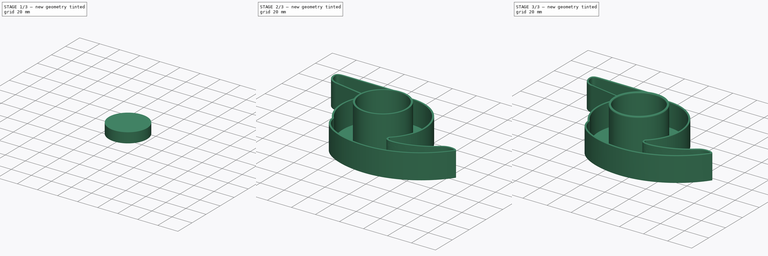
[diagram: build sequence overview — one tinted view per stage of 3, left to right]
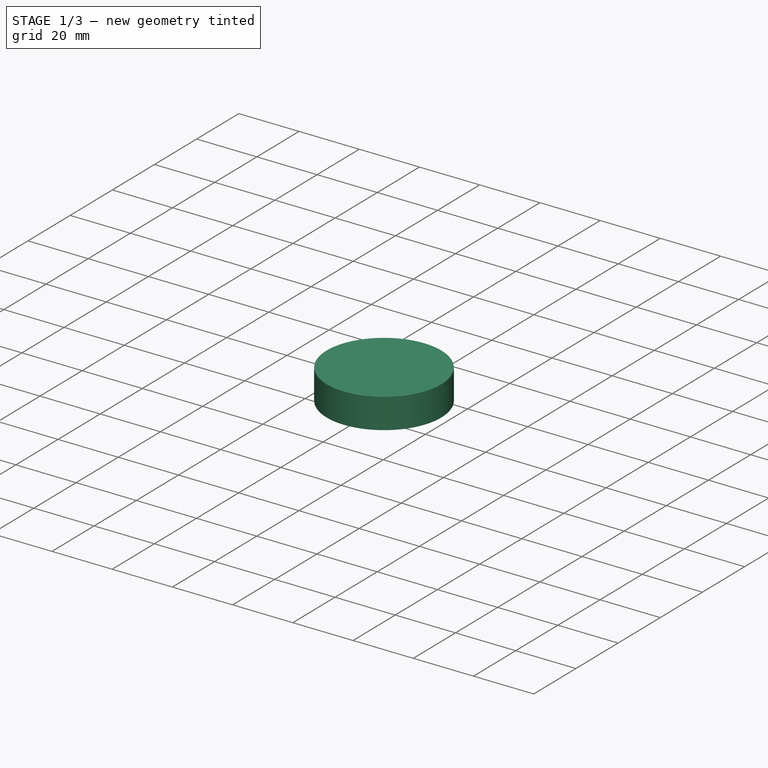
[diagram: stage 1 of 3 — iso view after this stage's code; geometry added in this stage tinted green]
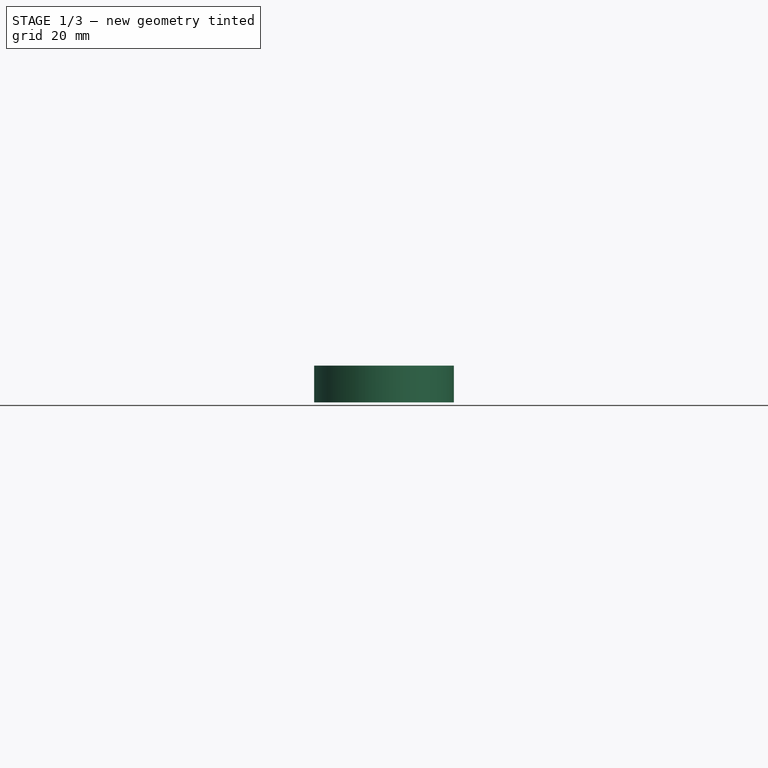
[diagram: stage 1 of 3 — front view after this stage's code; geometry added in this stage tinted green]
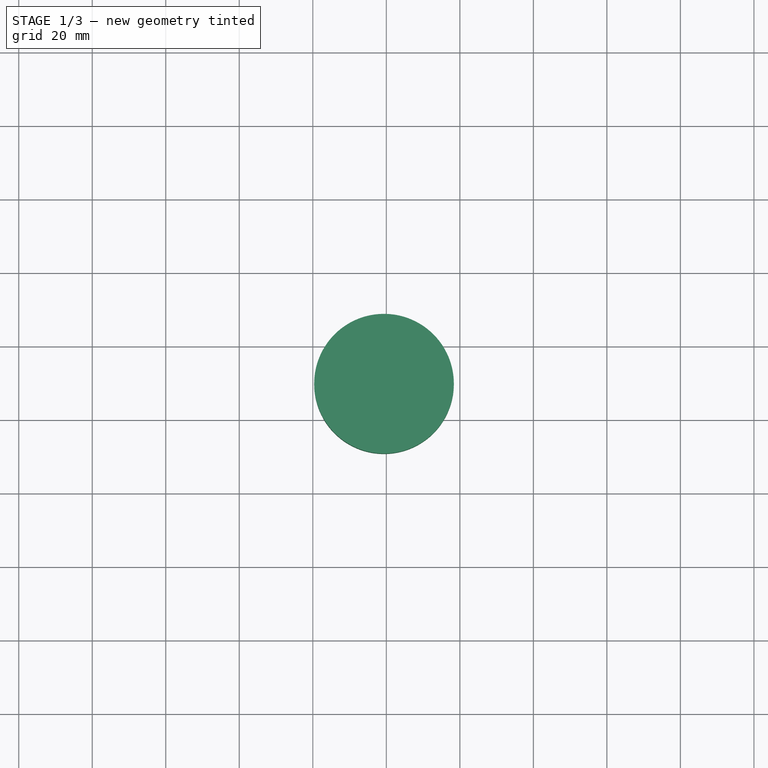
[diagram: stage 1 of 3 — top view after this stage's code; geometry added in this stage tinted green]
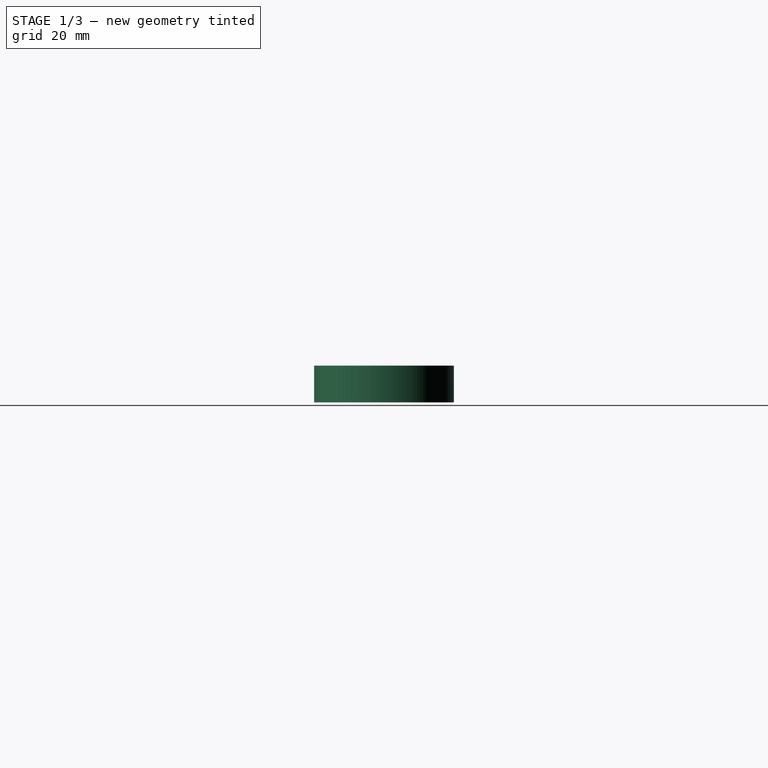
[diagram: stage 1 of 3 — right view after this stage's code; geometry added in this stage tinted green]
FCSTD DOCUMENT  (FreeCAD 0.19R22492 (Git))
Label: mixer blade cap
License: All rights reserved
LicenseURL: http://en.wikipedia.org/wiki/All_rights_reserved
objects: Sketcher::SketchObject×3, Image::ImagePlane×2, Part::Extrusion×2, Part::Fillet×2, PartDesign::Pad×1, PartDesign::Body×1, Part::Thickness×1, Part::MultiFuse×1, Part::Cut×1
note: 13 computed .brp shape members not serialized (recipe doc carries the construction recipe); baked Part::Feature solids carry a one-line shape summary decoded from their .brp

FEATURE [Image::ImagePlane] ImagePlane
  XSize = 187.915
  YSize = 140.985
FEATURE [Image::ImagePlane] ImagePlane001
  XSize = 111.841
  YSize = 161.77
FEATURE [Sketcher::SketchObject] Sketch
  MapMode = 5
  Support = -> [XY_Plane]
  sketch-geometry (52):
    g0: LineSegment StartX=-15.4348 StartY=47.4766 StartZ=0 EndX=-59.5325 EndY=47.4766 EndZ=0
    g1: LineSegment StartX=-57.313 StartY=36.2664 StartZ=0 EndX=-32.3412 EndY=31.7626 EndZ=0
    g2-g6: Circle [constr] x5 (B-spline internal-alignment scaffolding for g7; pole/knot coordinates omitted)
    g7: BSplineCurve PolesCount=5 KnotsCount=3 Degree=3 IsPeriodic=0
    g8: GeomPoint [constr] X=-59.5325 Y=47.4766 Z=0
    g9: GeomPoint [constr] X=-64.9548 Y=44.5479 Z=0
    g10: GeomPoint [constr] X=-57.313 Y=36.2664 Z=0
    g11: Circle [constr] CenterX=-15.4348 CenterY=47.4766 CenterZ=0 NormalX=0 NormalY=0 NormalZ=1 AngleXU=0 Radius=0.6
    g12: Circle [constr] CenterX=-9.20076 CenterY=46.7594 CenterZ=0 NormalX=0 NormalY=0 NormalZ=1 AngleXU=0 Radius=0.6
    g13: Circle [constr] CenterX=-1.15017 CenterY=43.3272 CenterZ=0 NormalX=0 NormalY=0 NormalZ=1 AngleXU=0 Radius=0.6
    g14: BSplineCurve PolesCount=3 KnotsCount=2 Degree=2 IsPeriodic=0
    g15: GeomPoint [constr] X=-15.4348 Y=47.4766 Z=0
    g16: GeomPoint [constr] X=-1.15017 Y=43.3272 Z=0
    g17: Circle [constr] CenterX=-32.3412 CenterY=31.7626 CenterZ=0 NormalX=0 NormalY=0 NormalZ=1 AngleXU=0 Radius=0.6
    g18: Circle [constr] CenterX=-27.569 CenterY=31.1076 CenterZ=0 NormalX=0 NormalY=0 NormalZ=1 AngleXU=0 Radius=0.6
    g19: Circle [constr] CenterX=-27.7479 CenterY=29.5024 CenterZ=0 NormalX=0 NormalY=0 NormalZ=1 AngleXU=0 Radius=0.6
    g20: BSplineCurve PolesCount=3 KnotsCount=2 Degree=2 IsPeriodic=0
    g21: GeomPoint [constr] X=-32.3412 Y=31.7626 Z=0
    g22: GeomPoint [constr] X=-27.7479 Y=29.5024 Z=0
    g23-g28: Circle [constr] x6 (B-spline internal-alignment scaffolding for g29; pole/knot coordinates omitted)
    g29: BSplineCurve PolesCount=9 KnotsCount=4 Degree=4 IsPeriodic=0
    g30-g33: GeomPoint [constr] x4 (B-spline internal-alignment scaffolding for g29; pole/knot coordinates omitted)
    g34: Circle [constr] CenterX=67.3602 CenterY=-5.4732 CenterZ=0 NormalX=0 NormalY=0 NormalZ=1 AngleXU=0 Radius=0.9
    g35: Circle [constr] CenterX=69.7004 CenterY=-6.0813 CenterZ=0 NormalX=0 NormalY=0 NormalZ=1 AngleXU=0 Radius=0.9
    g36: Circle [constr] CenterX=70.2968 CenterY=-7.04854 CenterZ=0 NormalX=0 NormalY=0 NormalZ=1 AngleXU=0 Radius=0.9
    g37-g41: Circle [constr] x5 (B-spline internal-alignment scaffolding for g42; pole/knot coordinates omitted)
    g42: BSplineCurve PolesCount=7 KnotsCount=3 Degree=4 IsPeriodic=0
    g43: GeomPoint [constr] X=70.2968 Y=-7.04854 Z=0
    g44: GeomPoint [constr] X=22.6054 Y=-34.8987 Z=0
    g45: GeomPoint [constr] X=-26.1539 Y=-11.8681 Z=0
    g46: Circle [constr] CenterX=-25.2648 CenterY=-24.466 CenterZ=0 NormalX=0 NormalY=0 NormalZ=1 AngleXU=0 Radius=4
    g47: Circle [constr] CenterX=-26.1539 CenterY=-11.8681 CenterZ=0 NormalX=0 NormalY=0 NormalZ=1 AngleXU=0 Radius=4
    g48: GeomPoint X=-0.63156 Y=9.83124 Z=0
    g49: ArcOfCircle CenterX=-0.63156 CenterY=9.83124 CenterZ=0 NormalX=0 NormalY=0 NormalZ=1 AngleXU=0 Radius=33.5 StartAngle=5.4439 EndAngle=7.86946
    g50: ArcOfCircle CenterX=-0.63156 CenterY=9.83124 CenterZ=0 NormalX=0 NormalY=0 NormalZ=1 AngleXU=0 Radius=33.5 StartAngle=2.514 EndAngle=3.84621
    g51: Circle [constr] CenterX=-0.63156 CenterY=9.83124 CenterZ=0 NormalX=0 NormalY=0 NormalZ=1 AngleXU=0 Radius=20.5
  constraints (56):
    c: Horizontal(g0)
    c: Coincident(g7,g0)
    c: Radius(g2) = 0.7
    c: Equal(g2, g3-g6) x4
    c: Coincident(g7,g1)
    c: InternalAlignment(g2-g6 -> g7) x5
    c: InternalAlignment(g8,g7)
    c: InternalAlignment(g9,g7)
    c: InternalAlignment(g10,g7)
    c: Coincident(g14,g0)
    c: Radius(g11) = 0.6
    c: Equal(g11,g12)
    c: Equal(g11,g13)
    c: InternalAlignment(g11,g14)
    c: InternalAlignment(g12,g14)
    c: InternalAlignment(g13,g14)
    c: InternalAlignment(g15,g14)
    c: InternalAlignment(g16,g14)
    c: Coincident(g20,g1)
    c: Radius(g17) = 0.6
    c: Equal(g17,g18)
    c: Equal(g17,g19)
    c: InternalAlignment(g17,g20)
    c: InternalAlignment(g18,g20)
    c: InternalAlignment(g19,g20)
    c: InternalAlignment(g21,g20)
    c: InternalAlignment(g22,g20)
    c: Radius(g23) = 0.9
    c: Equal(g23, g24-g28) x5
    c: InternalAlignment(g23-g28 -> g29) x6
    c: InternalAlignment(g30-g34 -> g29) x5
    c: Equal(g34,g23)
    c: InternalAlignment(g35,g29)
    c: Equal(g35,g23)
    c: InternalAlignment(g36,g29)
    c: Equal(g36,g23)
    c: Coincident(g42,g29)
    c: Radius(g37) = 4
    c: Equal(g37, g38-g41) x4
    c: InternalAlignment(g37-g41 -> g42) x5
    c: InternalAlignment(g43-g46 -> g42) x4
    c: Equal(g46,g37)
    c: InternalAlignment(g47,g42)
    c: Equal(g47,g37)
    c: Coincident(g49,g48)
    c: Coincident(g49,g14)
    c: Coincident(g49,g29)
    c: Coincident(g50,g48)
    c: Coincident(g50,g20)
    c: Coincident(g42,g50)
    c: Coincident(g51,g48)
    c: Diameter(g51) = 41
    c: DistanceX(g48) = -0.63156
    c: DistanceY(g48) = 9.83124
    c: Radius(g49) = 33.5
    c: Radius(g50) = 33.5
FEATURE [PartDesign::Pad] Pad
  Direction = (1,1,1)
  Length = 19
  Length2 = 100
  Profile = -> Sketch
  Refine = true
  Type = 0
FEATURE [PartDesign::Body] Body
  Group = -> [Sketch,Pad]
  Origin = -> Origin
  Tip = -> Pad
FEATURE [Part::Thickness] Thickness
  Faces = -> Pad [Face11]
  Intersection = true
  Join = 2
  Mode = 0
  SelfIntersection = false
  Value = 1.4
FEATURE [Sketcher::SketchObject] Sketch002
  ExternalGeometry = -> [Sketch001]
  MapMode = 2
  sketch-geometry (1):
    g0: Circle CenterX=-0.63156 CenterY=9.83124 CenterZ=0 NormalX=0 NormalY=0 NormalZ=1 AngleXU=0 Radius=19
  constraints (2):
    c: Coincident(g0,g-3)
    c: Diameter(g0) = 38
FEATURE [Part::Extrusion] Extrude001
  Base = -> Sketch002
  Dir = (0,0,1)
  DirMode = 2
  FaceMakerClass = Part::FaceMakerBullseye
  LengthFwd = 10
  LengthRev = 0
  Solid = true
  Symmetric = true
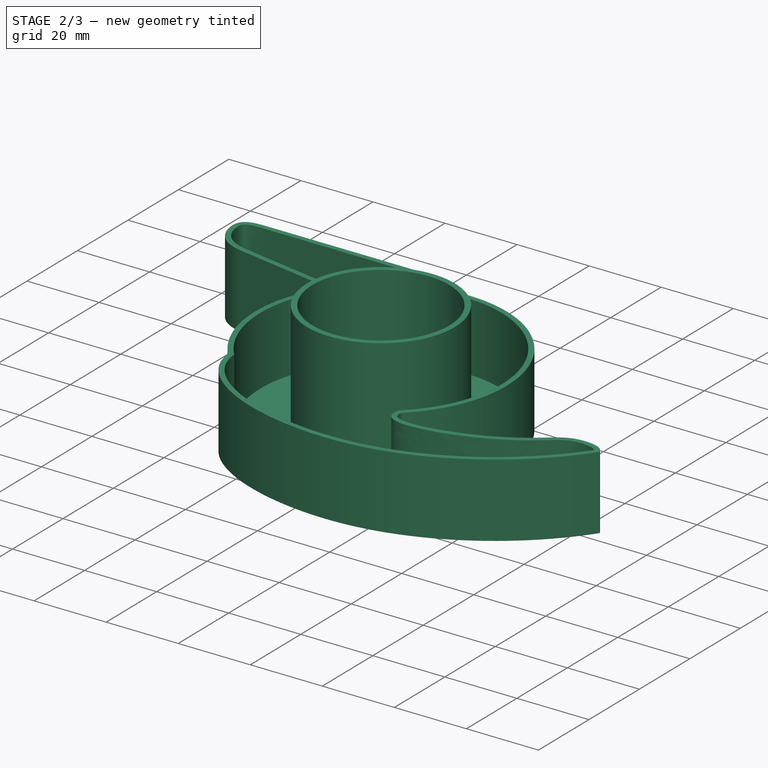
[diagram: stage 2 of 3 — iso view after this stage's code; geometry added in this stage tinted green]
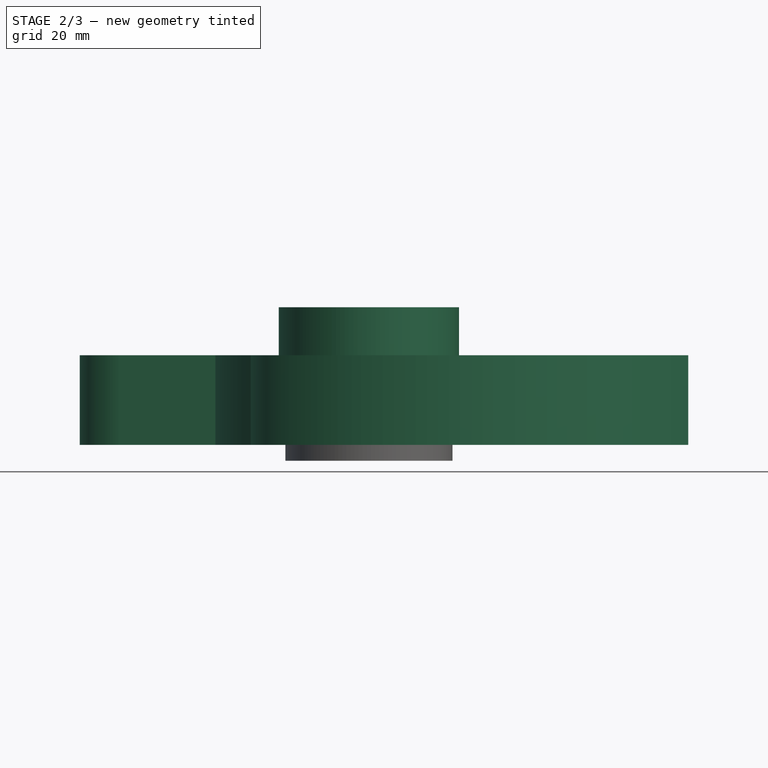
[diagram: stage 2 of 3 — front view after this stage's code; geometry added in this stage tinted green]
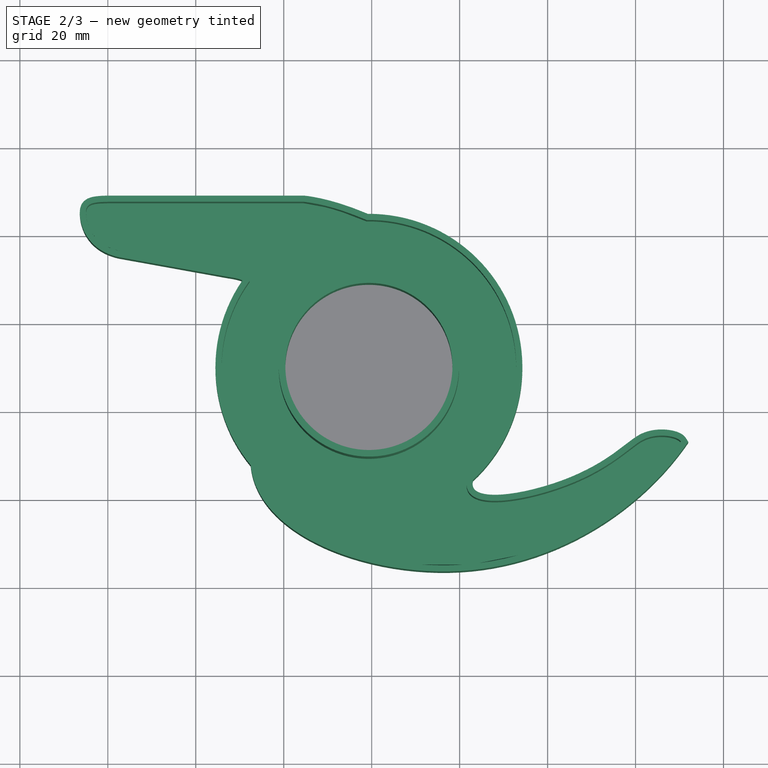
[diagram: stage 2 of 3 — top view after this stage's code; geometry added in this stage tinted green]
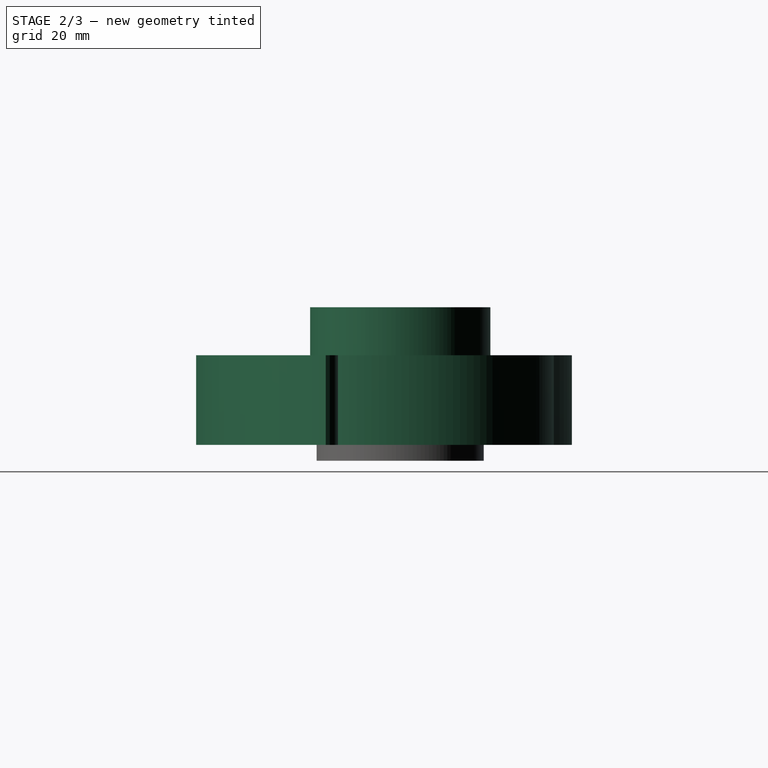
[diagram: stage 2 of 3 — right view after this stage's code; geometry added in this stage tinted green]
FEATURE [Sketcher::SketchObject] Sketch001
  MapMode = 5
  Support = -> [Thickness]
  expr: Constraints[1] = Sketch.Constraints[81]
  sketch-geometry (3):
    g0: GeomPoint X=-0.63156 Y=9.83124 Z=0
    g1: Circle CenterX=-0.63156 CenterY=9.83124 CenterZ=0 NormalX=0 NormalY=0 NormalZ=1 AngleXU=0 Radius=20.5
    g2: Circle CenterX=-0.63156 CenterY=9.83124 CenterZ=0 NormalX=0 NormalY=0 NormalZ=1 AngleXU=0 Radius=19
  constraints (6):
    c: Coincident(g1,g0)
    c: Diameter(g1) = 41
    c: DistanceX(g0) = -0.63156
    c: DistanceY(g0) = 9.83124
    c: Coincident(g2,g0)
    c: Diameter(g2) = 38
FEATURE [Part::Extrusion] Extrude
  Base = -> Sketch001
  Dir = (0,0,1)
  DirMode = 2
  FaceMakerClass = Part::FaceMakerBullseye
  LengthFwd = 30
  LengthRev = 0
  Placement = pos=(0,0,-0.1) rot=(0,0,1;0rad)
  Solid = true
  Symmetric = false
FEATURE [Part::MultiFuse] Fusion
  Refine = true
  Shapes = -> [Extrude,Thickness]
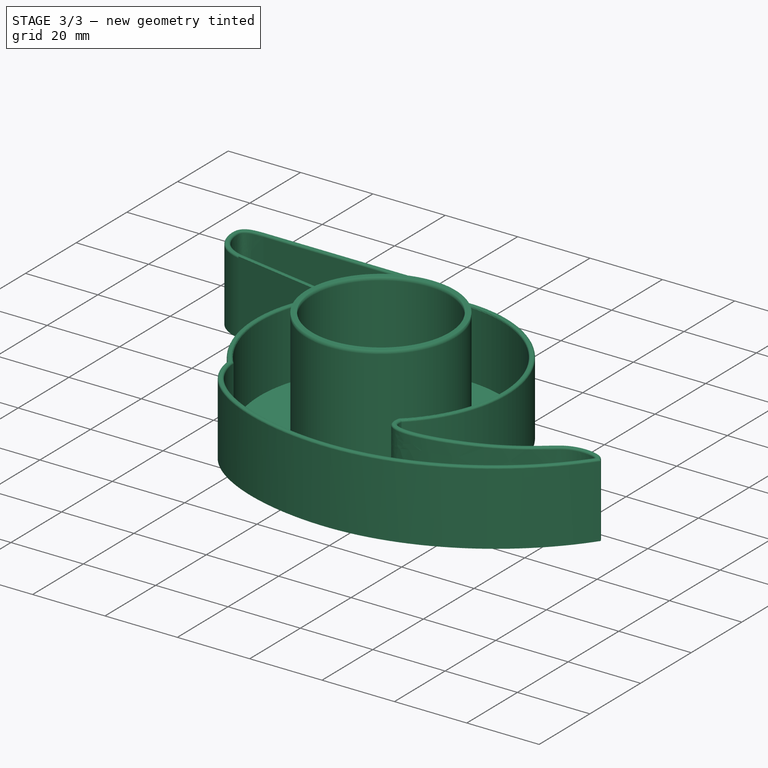
[diagram: stage 3 of 3 — iso view after this stage's code; geometry added in this stage tinted green]
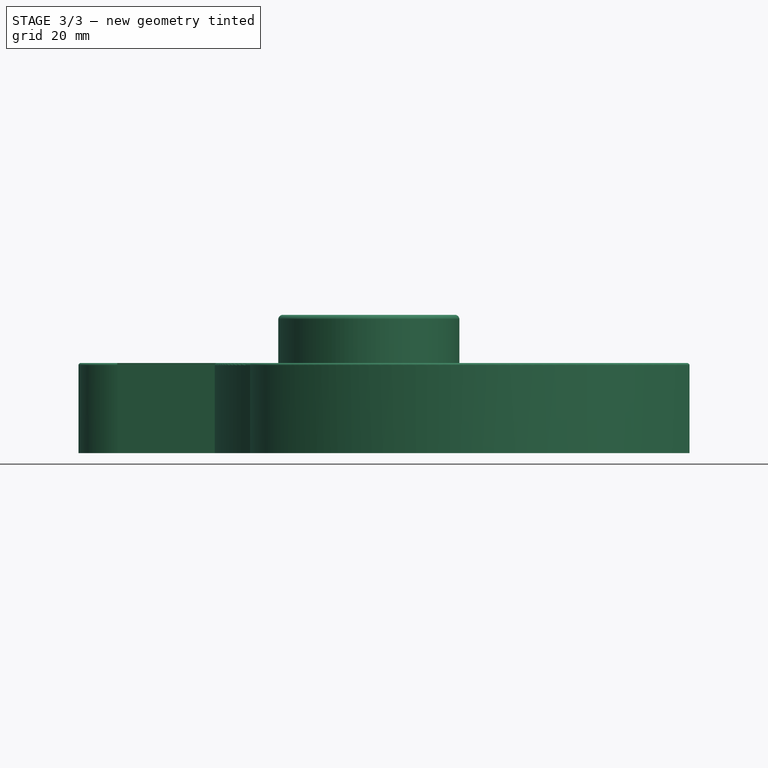
[diagram: stage 3 of 3 — front view after this stage's code; geometry added in this stage tinted green]
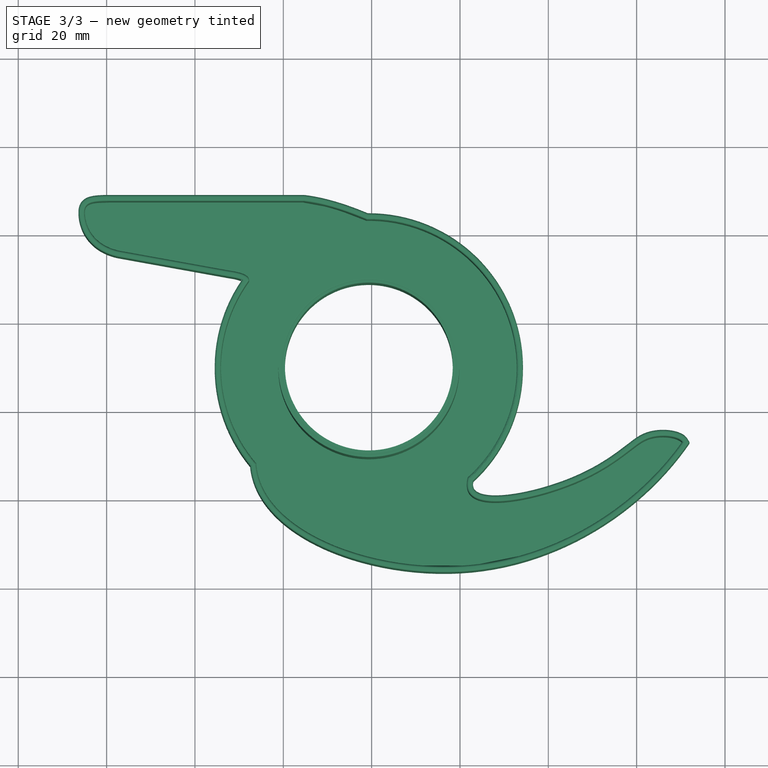
[diagram: stage 3 of 3 — top view after this stage's code; geometry added in this stage tinted green]
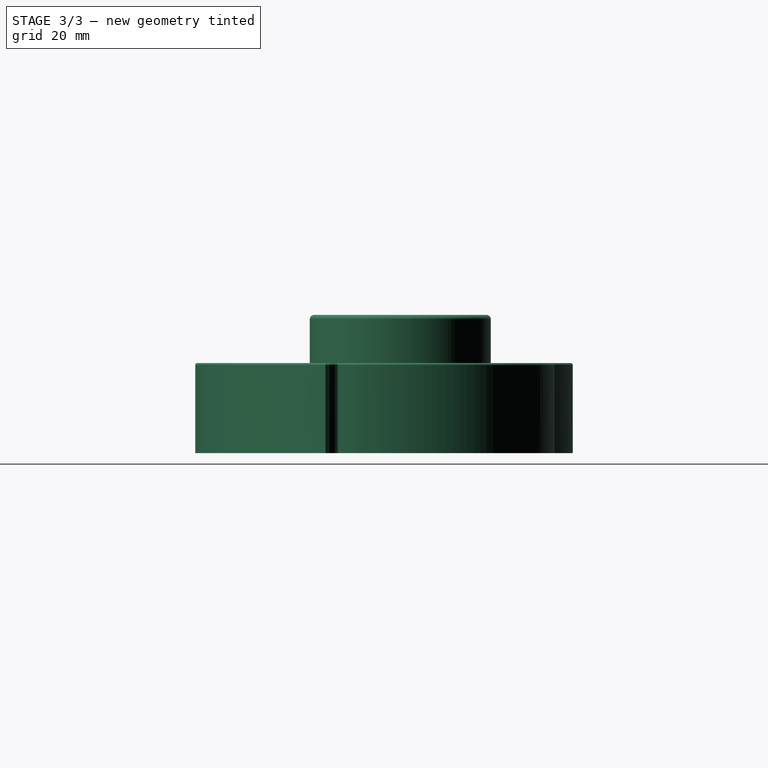
[diagram: stage 3 of 3 — right view after this stage's code; geometry added in this stage tinted green]
FEATURE [Part::Cut] Cut
  Base = -> Fusion
  Refine = true
  Tool = -> Extrude001
FEATURE [Part::Fillet] Fillet
  Base = -> Cut
  Edges = 18 edges r=0.5: [Edge16,Edge18,Edge20,Edge22,Edge24,Edge26,Edge28,Edge30,Edge31,Edge32,Edge33,Edge34,Edge35,Edge36,Edge37,Edge38,Edge39,Edge40]
FEATURE [Part::Fillet] Fillet001
  Base = -> Fillet
  Edges = 2 edges r=1: [Edge53,Edge79]
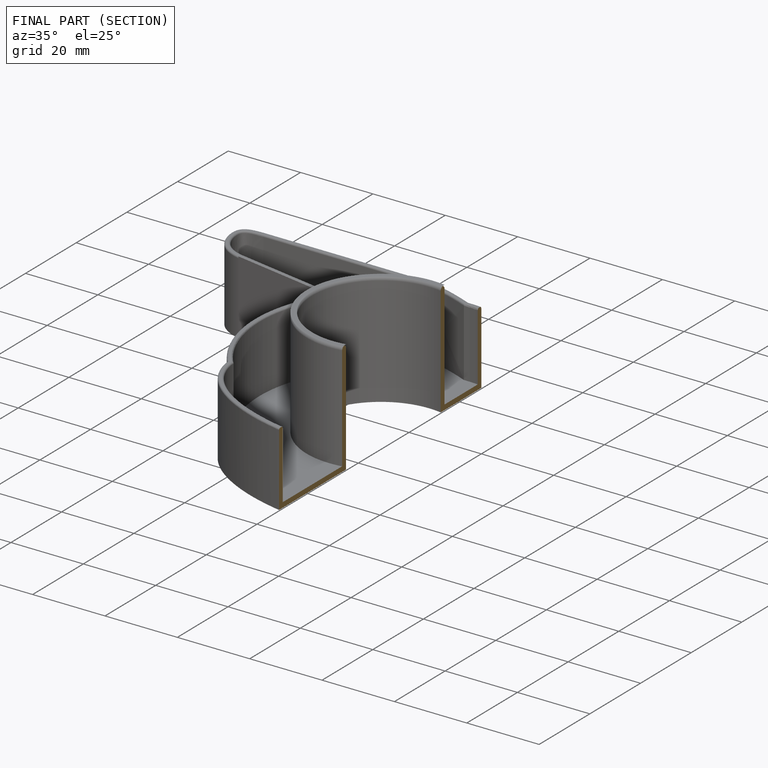
[diagram: finished part — half-section view (interior)]
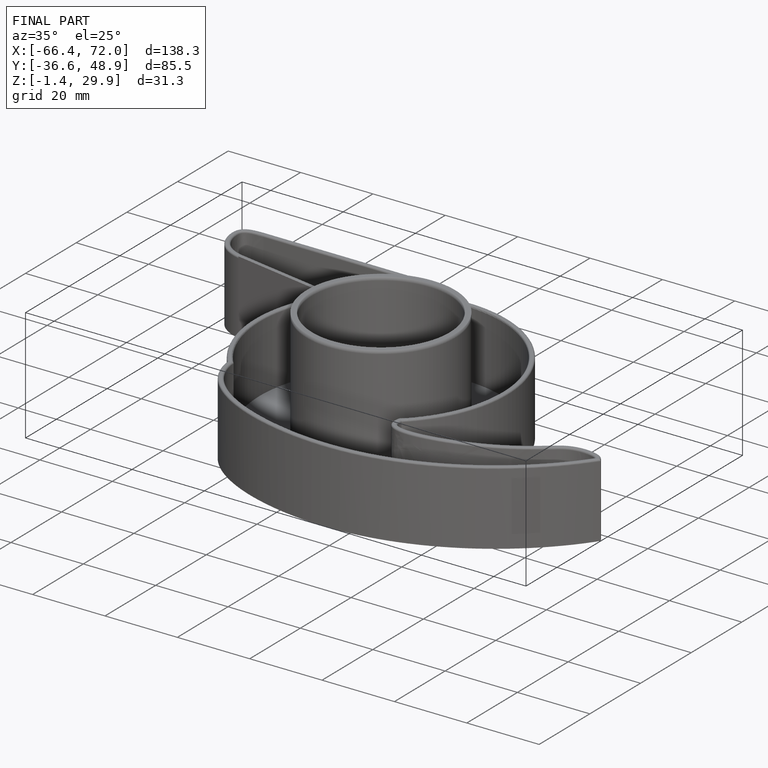
[diagram: finished part — iso view with bounding-box wireframe]
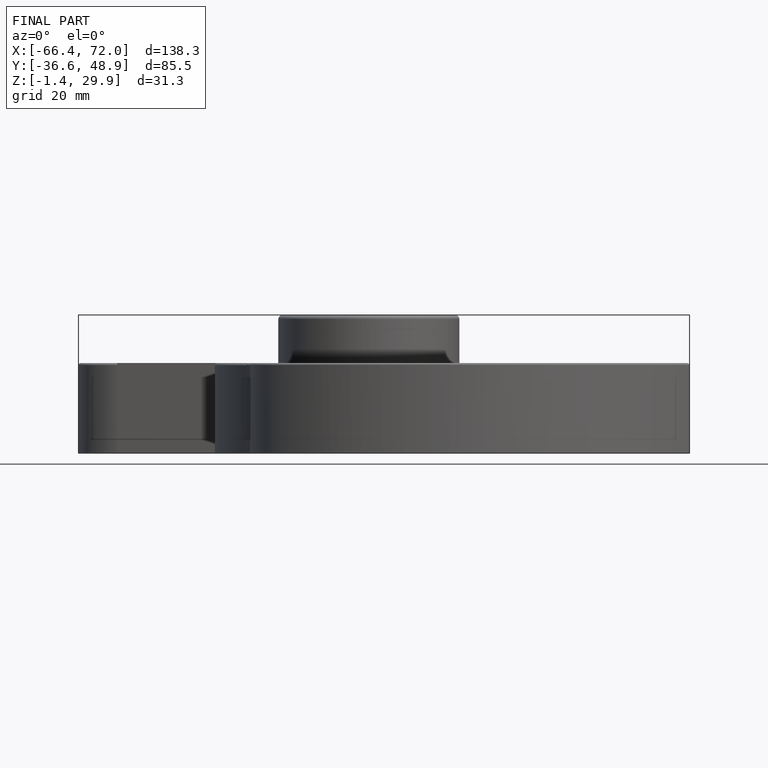
[diagram: finished part — front view with bounding-box wireframe]
